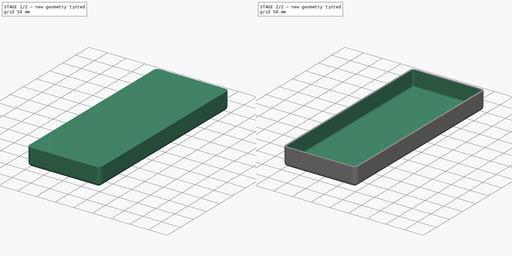
[diagram: build sequence overview — one tinted view per stage of 2, left to right]
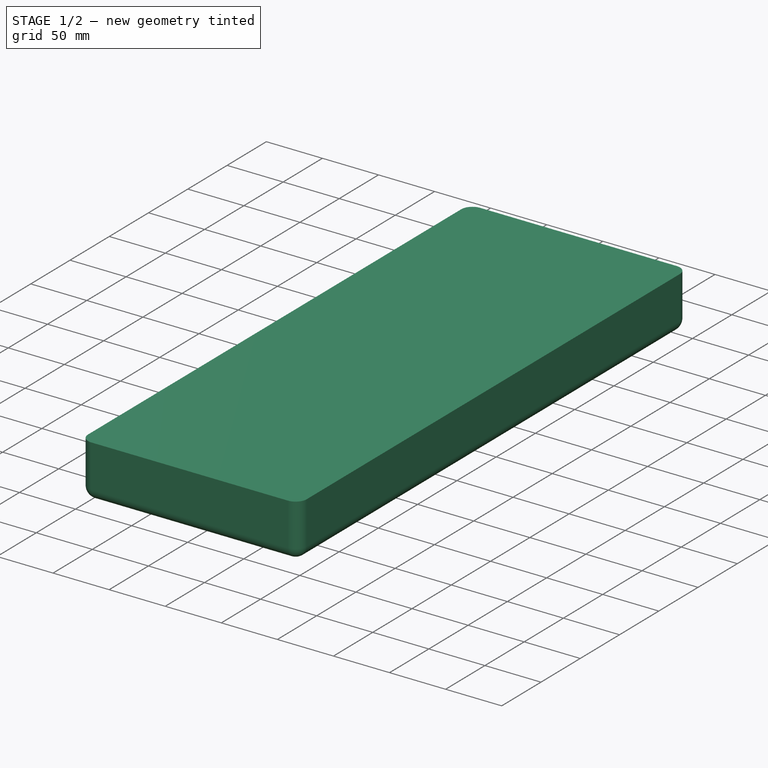
[diagram: stage 1 of 2 — iso view after this stage's code; geometry added in this stage tinted green]
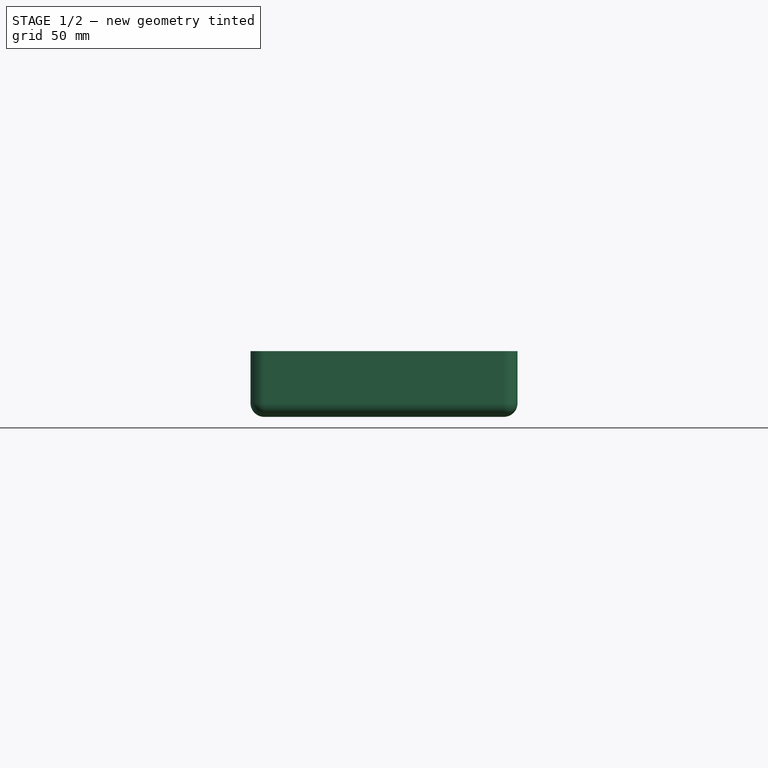
[diagram: stage 1 of 2 — front view after this stage's code; geometry added in this stage tinted green]
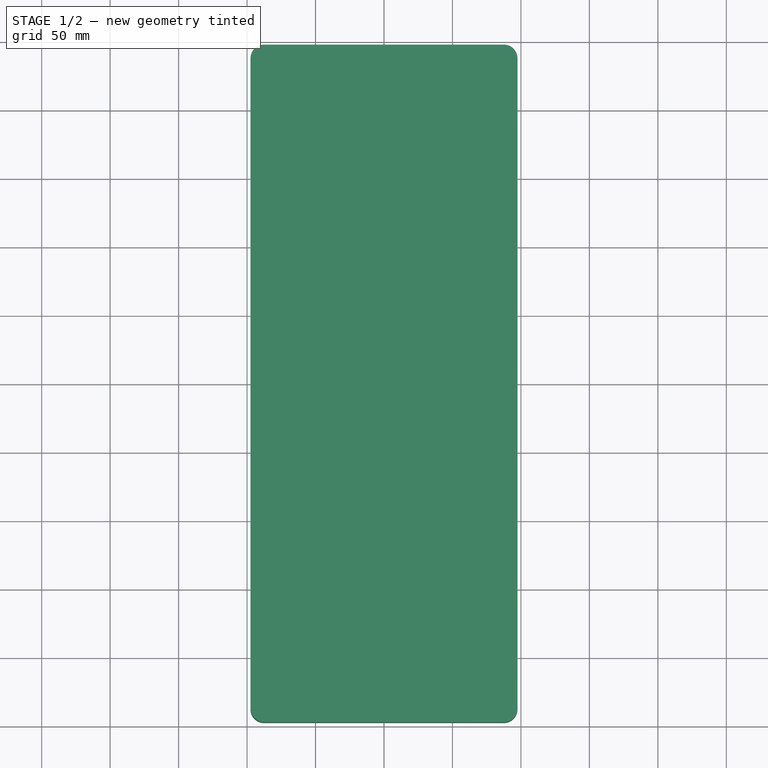
[diagram: stage 1 of 2 — top view after this stage's code; geometry added in this stage tinted green]
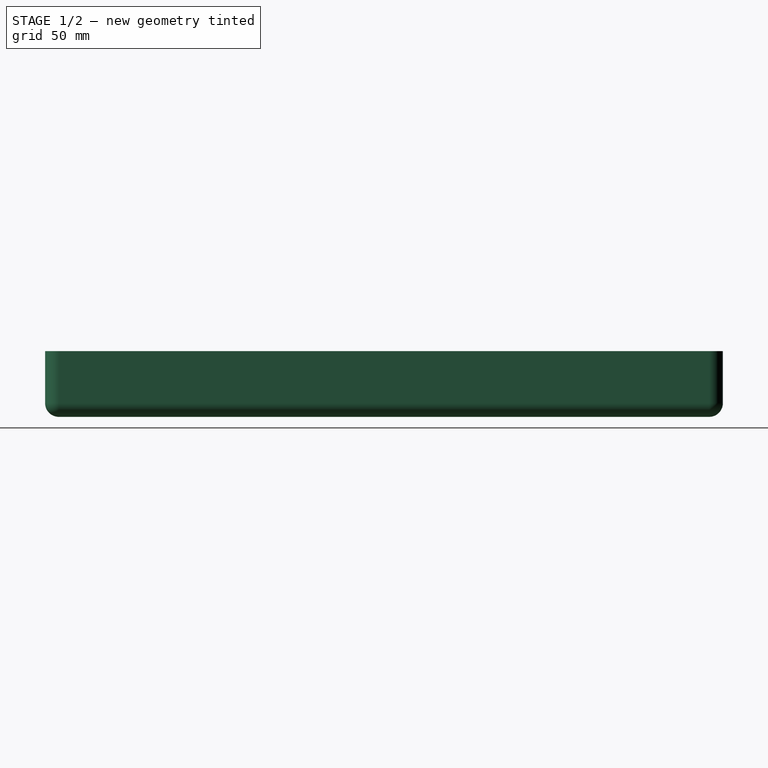
[diagram: stage 1 of 2 — right view after this stage's code; geometry added in this stage tinted green]
FCSTD DOCUMENT  (FreeCAD 1.1R20260223 (Git shallow))
Label: wallspeakers prototype v6
License: All rights reserved
LicenseURL: http://en.wikipedia.org/wiki/All_rights_reserved
objects: Sketcher::SketchObject×4, App::Point×1, PartDesign::Pad×1, PartDesign::Fillet×1, PartDesign::Thickness×1, PartDesign::Body×1, App::VarSet×1
note: 18 computed .brp shape members not serialized (recipe doc carries the construction recipe); baked Part::Feature solids carry a one-line shape summary decoded from their .brp

FEATURE [App::Point] Origin001
  Role = Origin
FEATURE [Sketcher::SketchObject] Sketch001
  ArcFitTolerance = 1e-06
  AttachmentSupport = -> [Origin]
  ExternalTypes = [0]
  FullyConstrained = true
  MakeInternals = false
  MapMode = 5
  expr: Constraints[32] = <<v>>.ext_roundover_radius
  expr: Constraints[3] = Sketch002.Constraints[3]
  expr: Constraints[4] = Sketch002.Constraints[4]
  expr: Constraints[5] = Sketch002.Constraints[5]
  expr: Constraints[6] = Sketch002.Constraints[6]
  expr: Constraints[7] = Sketch002.Constraints[7]
  sketch-geometry (17):
    g0: GeomPoint X=-97.5 Y=247.5 Z=0
    g1: GeomPoint X=97.5 Y=247.5 Z=0
    g2: GeomPoint X=97.5 Y=-247.5 Z=0
    g3: GeomPoint X=-97.5 Y=-247.5 Z=0
    g4: GeomPoint [constr] X=-70 Y=0 Z=0
    g5: GeomPoint X=0 Y=120 Z=0
    g6: GeomPoint X=0 Y=-120 Z=0
    g7: LineSegment StartX=-97.5 StartY=237.5 StartZ=0 EndX=-97.5 EndY=-237.5 EndZ=0
    g8: LineSegment StartX=-87.5 StartY=-247.5 StartZ=0 EndX=87.5 EndY=-247.5 EndZ=0
    g9: LineSegment StartX=97.5 StartY=-237.5 StartZ=0 EndX=97.5 EndY=237.5 EndZ=0
    g10: LineSegment StartX=87.5 StartY=247.5 StartZ=0 EndX=-87.5 EndY=247.5 EndZ=0
    g11: ArcOfCircle CenterX=-87.5 CenterY=237.5 CenterZ=0 NormalX=0 NormalY=0 NormalZ=1 AngleXU=0 Radius=10 StartAngle=1.5708 EndAngle=3.14159
    g12: ArcOfCircle CenterX=-87.5 CenterY=-237.5 CenterZ=0 NormalX=0 NormalY=0 NormalZ=1 AngleXU=0 Radius=10 StartAngle=3.14159 EndAngle=4.71239
    g13: ArcOfCircle CenterX=87.5 CenterY=-237.5 CenterZ=0 NormalX=0 NormalY=0 NormalZ=1 AngleXU=0 Radius=10 StartAngle=4.71239 EndAngle=6.28319
    g14: ArcOfCircle CenterX=87.5 CenterY=237.5 CenterZ=0 NormalX=0 NormalY=0 NormalZ=1 AngleXU=0 Radius=10 StartAngle=1e-15 EndAngle=1.5708
    g15: GeomPoint [constr] X=-97.5 Y=247.5 Z=0
    g16: GeomPoint [constr] X=97.5 Y=-247.5 Z=0
  constraints (33):
    c: PointOnObject(g4,g-1)
    c: PointOnObject(g5,g-2)
    c: PointOnObject(g6,g-2)
    c: DistanceX(g4,g-1) = 70
    c: DistanceY(g-1,g5) = 120
    c: DistanceY(g6,g-1) = 120
    c: DistanceY(g-1,g1) = 247.5
    c: DistanceX(g-1,g1) = 97.5
    c: Symmetric(g0,g1,g-2)
    c: Symmetric(g1,g2,g-1)
    c: Symmetric(g3,g2,g-2)
    c: Tangent(g7,g11) = -1.5708
    c: Tangent(g7,g12) = -1.5708
    c: Tangent(g8,g12) = -1.5708
    c: Tangent(g8,g13) = -1.5708
    c: Tangent(g9,g13) = -1.5708
    c: Tangent(g9,g14) = -1.5708
    c: Tangent(g10,g14) = -1.5708
    c: Tangent(g10,g11) = -1.5708
    c: Vertical(g7)
    c: Vertical(g9)
    c: Horizontal(g8)
    c: Horizontal(g10)
    c: Equal(g11,g12)
    c: Equal(g12,g13)
    c: Equal(g13,g14)
    c: PointOnObject(g15,g7)
    c: PointOnObject(g15,g10)
    c: PointOnObject(g16,g8)
    c: PointOnObject(g16,g9)
    c: Coincident(g15,g0)
    c: Coincident(g16,g2)
    c: Radius(g13) = 10
FEATURE [PartDesign::Pad] Pad  label="main block"
  Direction = (0,0,1)
  Length = 48
  Length2 = 10
  Profile = -> Sketch001
  ReferenceAxis = -> Sketch001 [N_Axis]
  SideType = 0
  Suppressed = false
  Type = 0
  Type2 = 0
  expr: Length = VarSet.ext_thickness
FEATURE [PartDesign::Fillet] Fillet  label="front roundovers"
  Base = -> Pad [Face9]
  BaseFeature = -> Pad
  Radius = 10
  SupportTransform = false
  Suppressed = false
  UseAllEdges = false
  expr: Radius = <<v>>.ext_roundover_radius
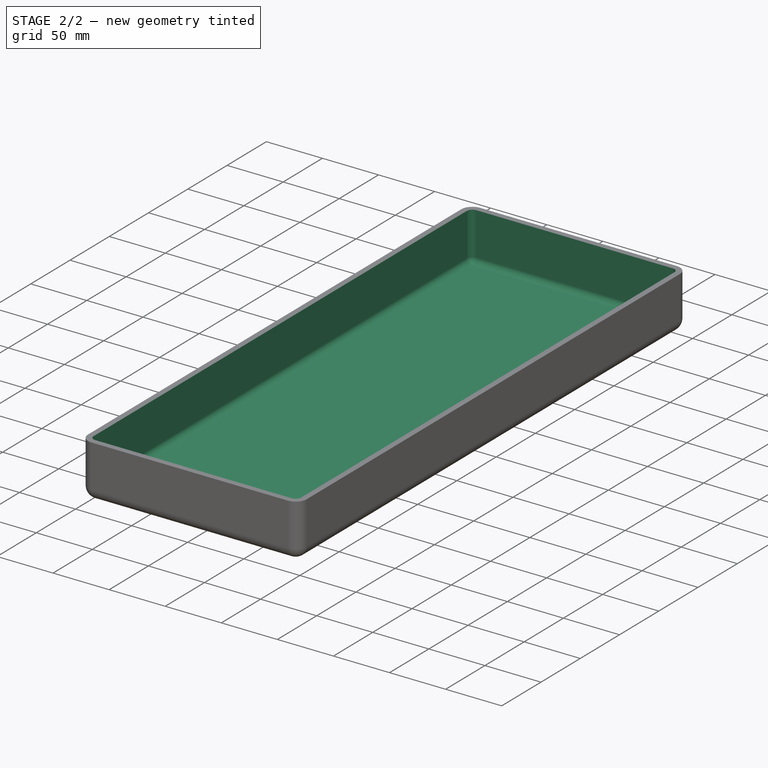
[diagram: stage 2 of 2 — iso view after this stage's code; geometry added in this stage tinted green]
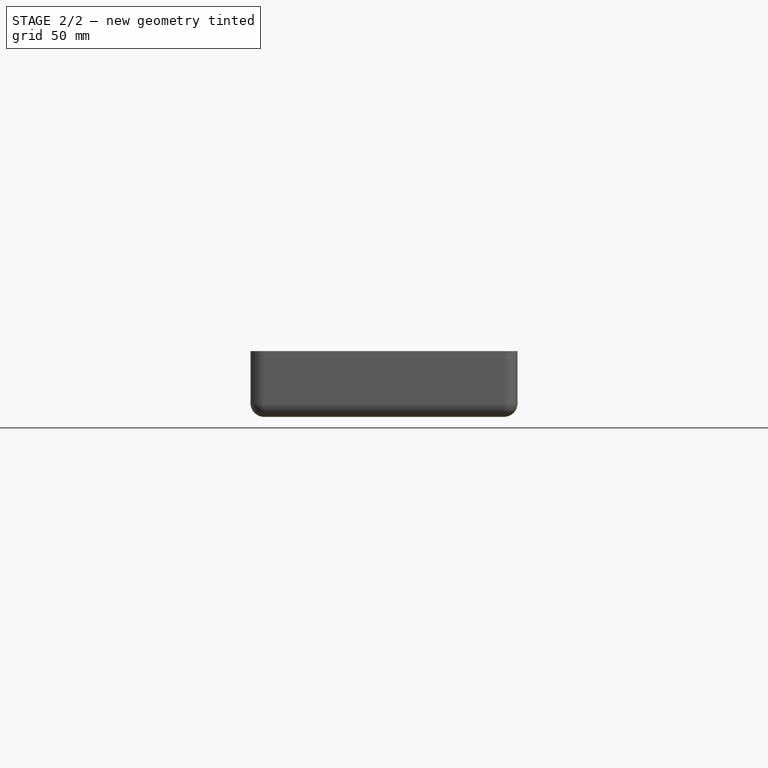
[diagram: stage 2 of 2 — front view after this stage's code; geometry added in this stage tinted green]
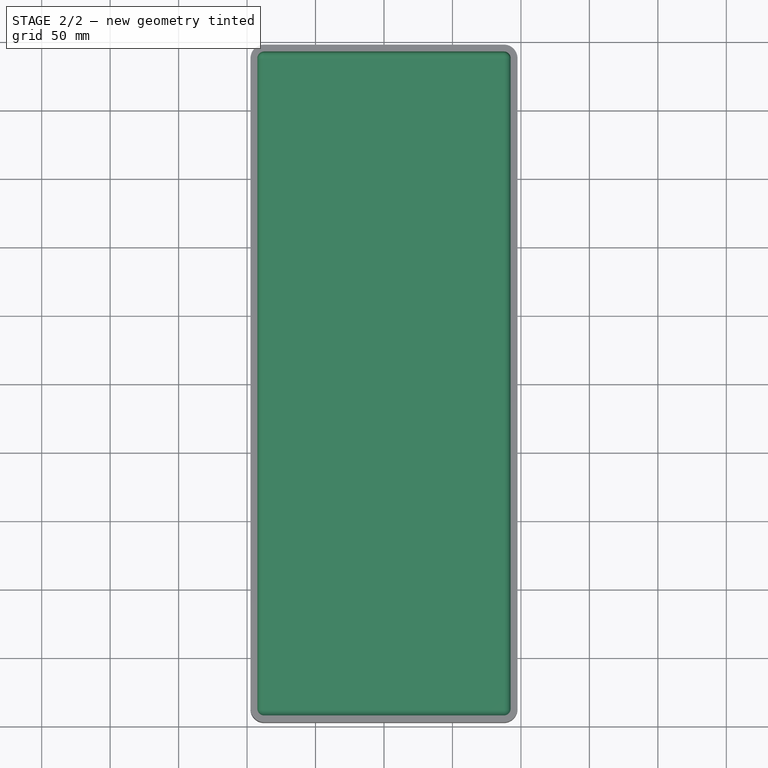
[diagram: stage 2 of 2 — top view after this stage's code; geometry added in this stage tinted green]
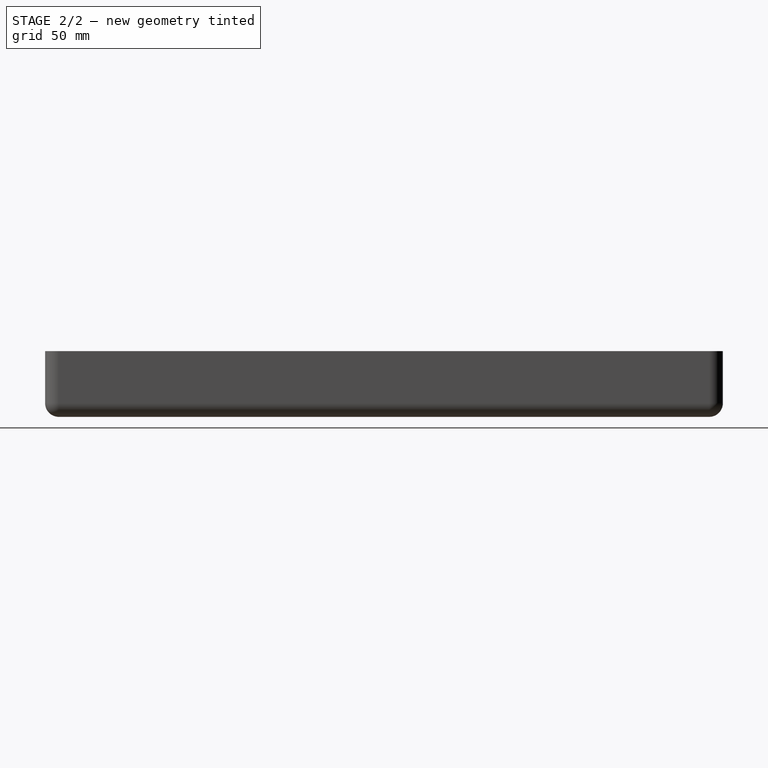
[diagram: stage 2 of 2 — right view after this stage's code; geometry added in this stage tinted green]
FEATURE [Sketcher::SketchObject] Sketch002  label="base geometry"
  ArcFitTolerance = 1e-06
  ExternalTypes = [0]
  FullyConstrained = true
  MakeInternals = false
  expr: Constraints[3] = <<v>>.bmr_offset
  expr: Constraints[4] = <<v>>.woofer_offset
  expr: Constraints[5] = <<v>>.woofer_offset
  expr: Constraints[6] = <<v>>.ext_height / 2
  expr: Constraints[7] = <<v>>.ext_width / 2
  sketch-geometry (7):
    g0: GeomPoint [constr] X=-97.5 Y=247.5 Z=0
    g1: GeomPoint [constr] X=97.5 Y=247.5 Z=0
    g2: GeomPoint [constr] X=97.5 Y=-247.5 Z=0
    g3: GeomPoint [constr] X=-97.5 Y=-247.5 Z=0
    g4: GeomPoint [constr] X=-70 Y=0 Z=0
    g5: GeomPoint [constr] X=0 Y=120 Z=0
    g6: GeomPoint [constr] X=0 Y=-120 Z=0
  constraints (11):
    c: PointOnObject(g4,g-1)
    c: PointOnObject(g5,g-2)
    c: PointOnObject(g6,g-2)
    c: DistanceX(g4,g-1) = 70
    c: DistanceY(g-1,g5) = 120
    c: DistanceY(g6,g-1) = 120
    c: DistanceY(g-1,g1) = 247.5
    c: DistanceX(g-1,g1) = 97.5
    c: Symmetric(g0,g1,g-2)
    c: Symmetric(g1,g2,g-1)
    c: Symmetric(g3,g2,g-2)
FEATURE [Sketcher::SketchObject] Sketch  label="screw hole geometry"
  ArcFitTolerance = 1e-06
  AttachmentSupport = -> [Sketch002]
  ExternalTypes = [0]
  FullyConstrained = true
  MakeInternals = false
  MapMode = 2
  expr: Constraints[11] = VarSet.bmr_enc_top_offset
  expr: Constraints[1] = <<v>>.ext_height / 2 - <<v>>.screw_offset
  expr: Constraints[2] = <<v>>.ext_width / 2 - <<v>>.screw_offset
  expr: Constraints[8] = <<v>>.ext_width / 2 - <<v>>.screw_offset
  expr: Constraints[9] = <<v>>.bmr_enc_base
  sketch-geometry (9):
    g0: GeomPoint [constr] X=-87.5 Y=237.5 Z=0
    g1: GeomPoint [constr] X=87.5 Y=237.5 Z=0
    g2: GeomPoint [constr] X=87.5 Y=-237.5 Z=0
    g3: GeomPoint [constr] X=-87.5 Y=-237.5 Z=0
    g4: GeomPoint [constr] X=-87.5 Y=-90 Z=0
    g5: GeomPoint [constr] X=-87.5 Y=90 Z=0
    g6: GeomPoint [constr] X=87.5 Y=90 Z=0
    g7: GeomPoint [constr] X=87.5 Y=-90 Z=0
    g8: GeomPoint [constr] X=-30 Y=0 Z=0
  constraints (12):
    c: PointOnObject(g8,g-1)
    c: DistanceY(g-1,g0) = 237.5
    c: DistanceX(g0,g-1) = 87.5
    c: Symmetric(g0,g1,g-2)
    c: Symmetric(g5,g6,g-2)
    c: Symmetric(g4,g7,g-2)
    c: Symmetric(g3,g2,g-2)
    c: Symmetric(g2,g1,g-1)
    c: DistanceX(g5,g-1) = 87.5
    c: DistanceY(g4,g5) = 180
    c: Symmetric(g5,g4,g-1)
    c: Distance(g8,g-1) = 30
FEATURE [Sketcher::SketchObject] Sketch003
  ArcFitTolerance = 1e-06
  AttachmentOffset = pos=(0,0,5) rot=(0,0,1;0rad)
  AttachmentSupport = -> [Sketch]
  ExternalTypes = [0]
  FullyConstrained = true
  MakeInternals = false
  MapMode = 2
  Placement = pos=(0,0,5) rot=(0,0,1;0rad)
  expr: .AttachmentOffset.Base.z = <<v>>.wall_thickness
  expr: Constraints[11] = Sketch.Constraints[11]
  expr: Constraints[1] = Sketch.Constraints[1]
  expr: Constraints[27] = <<v>>.screw_post_diameter
  expr: Constraints[2] = Sketch.Constraints[2]
  expr: Constraints[8] = Sketch.Constraints[8]
  expr: Constraints[9] = Sketch.Constraints[9]
  sketch-geometry (18):
    g0: GeomPoint [constr] X=-87.5 Y=237.5 Z=0
    g1: GeomPoint [constr] X=87.5 Y=237.5 Z=0
    g2: GeomPoint [constr] X=87.5 Y=-237.5 Z=0
    g3: GeomPoint [constr] X=-87.5 Y=-237.5 Z=0
    g4: GeomPoint [constr] X=-87.5 Y=-90 Z=0
    g5: GeomPoint [constr] X=-87.5 Y=90 Z=0
    g6: GeomPoint [constr] X=87.5 Y=90 Z=0
    g7: GeomPoint [constr] X=87.5 Y=-90 Z=0
    g8: GeomPoint [constr] X=-30 Y=0 Z=0
    g9: Circle CenterX=-87.5 CenterY=237.5 CenterZ=0 NormalX=0 NormalY=0 NormalZ=1 AngleXU=0 Radius=10
    g10: Circle CenterX=87.5 CenterY=237.5 CenterZ=0 NormalX=0 NormalY=0 NormalZ=1 AngleXU=0 Radius=10
    g11: Circle CenterX=87.5 CenterY=90 CenterZ=0 NormalX=0 NormalY=0 NormalZ=1 AngleXU=0 Radius=10
    g12: Circle CenterX=-87.5 CenterY=90 CenterZ=0 NormalX=0 NormalY=0 NormalZ=1 AngleXU=0 Radius=10
    g13: Circle CenterX=-87.5 CenterY=-90 CenterZ=0 NormalX=0 NormalY=0 NormalZ=1 AngleXU=0 Radius=10
    g14: Circle CenterX=87.5 CenterY=-90 CenterZ=0 NormalX=0 NormalY=0 NormalZ=1 AngleXU=0 Radius=10
    g15: Circle CenterX=87.5 CenterY=-237.5 CenterZ=0 NormalX=0 NormalY=0 NormalZ=1 AngleXU=0 Radius=10
    g16: Circle CenterX=-87.5 CenterY=-237.5 CenterZ=0 NormalX=0 NormalY=0 NormalZ=1 AngleXU=0 Radius=10
    g17: Circle CenterX=-30 CenterY=0 CenterZ=0 NormalX=0 NormalY=0 NormalZ=1 AngleXU=0 Radius=10
  constraints (24):
    c: PointOnObject(g8,g-1)
    c: DistanceY(g-1,g0) = 237.5
    c: DistanceX(g0,g-1) = 87.5
    c: Symmetric(g0,g1,g-2)
    c: Symmetric(g5,g6,g-2)
    c: Symmetric(g4,g7,g-2)
    c: Symmetric(g3,g2,g-2)
    c: Symmetric(g2,g1,g-1)
    c: DistanceX(g5,g-1) = 87.5
    c: DistanceY(g4,g5) = 180
    c: Symmetric(g5,g4,g-1)
    c: Distance(g8,g-1) = 30
    c: Coincident(g9,g0)
    c: Coincident(g10,g1)
    c: Coincident(g11,g6)
    c: Coincident(g12,g5)
    c: Coincident(g13,g4)
    c: Coincident(g14,g7)
    c: Coincident(g15,g2)
    c: Coincident(g16,g3)
    c: Equal(g9, g10-g16) x7
    c: Radius(g9) = 10
    c: Coincident(g17,g8)
    c: Equal(g9,g17)
FEATURE [PartDesign::Thickness] Thickness  label="hollow main block"
  Base = -> Fillet [Face4]
  BaseFeature = -> Fillet
  Intersection = false
  Join = 0
  Mode = 0
  Reversed = true
  SupportTransform = false
  Suppressed = false
  Value = 5
  expr: Value = <<v>>.wall_thickness
FEATURE [PartDesign::Body] Body  label="shell"
  AllowCompound = false
  Group = -> [Sketch002,Sketch,Sketch001,Pad,Fillet,Thickness,Sketch003]
  Origin = -> Origin
  Tip = -> Thickness
FEATURE [App::VarSet] VarSet  label="v"
  bmr_enc_base = 180
  bmr_enc_top_offset = 30
  bmr_offset = 70
  ext_height = 495
  ext_roundover_radius = 10
  ext_thickness = 48
  ext_width = 195
  screw_offset = 10
  screw_post_diameter = 10
  wall_thickness = 5
  woofer_offset = 120
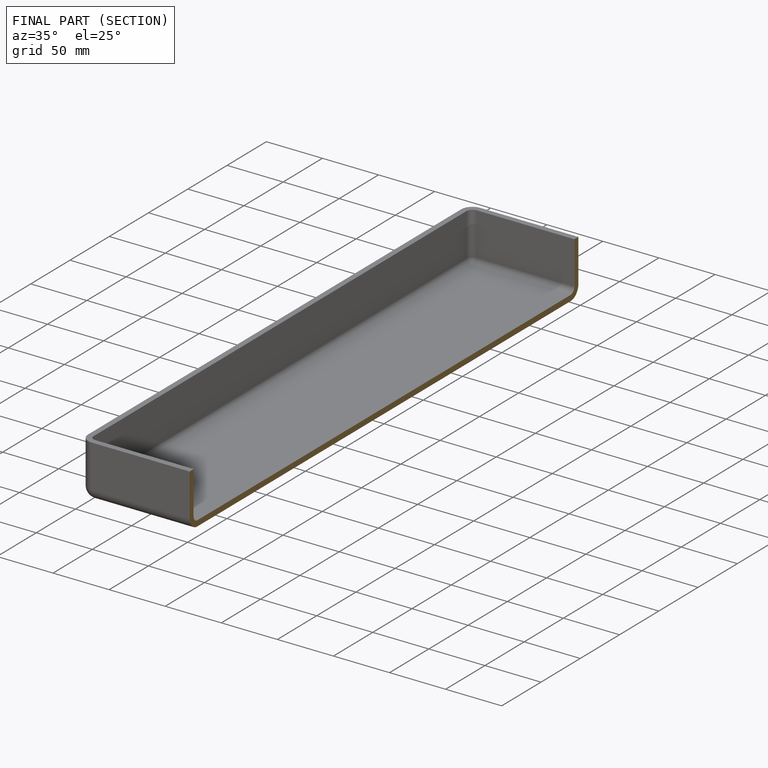
[diagram: finished part — half-section view (interior)]
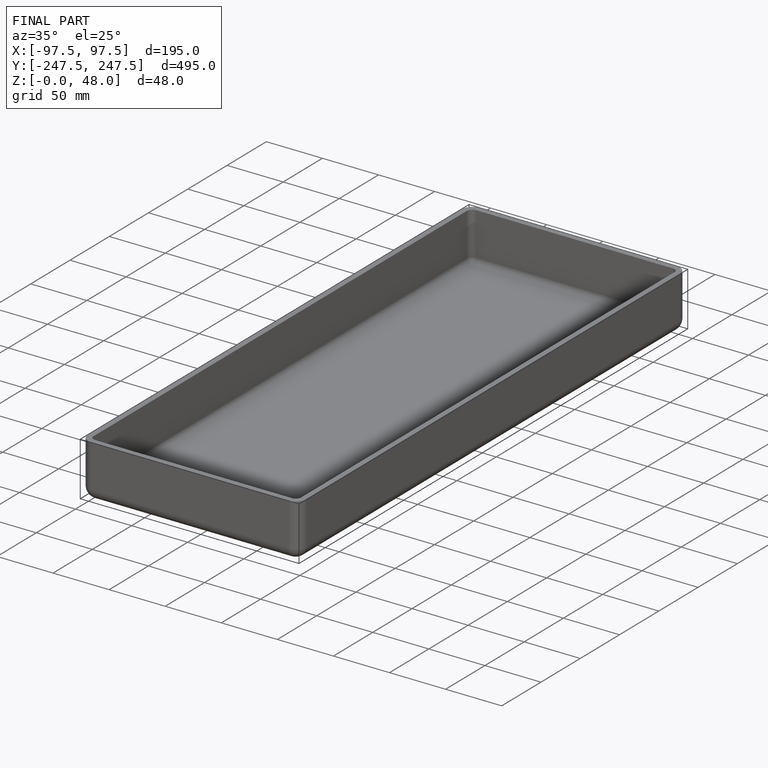
[diagram: finished part — iso view with bounding-box wireframe]
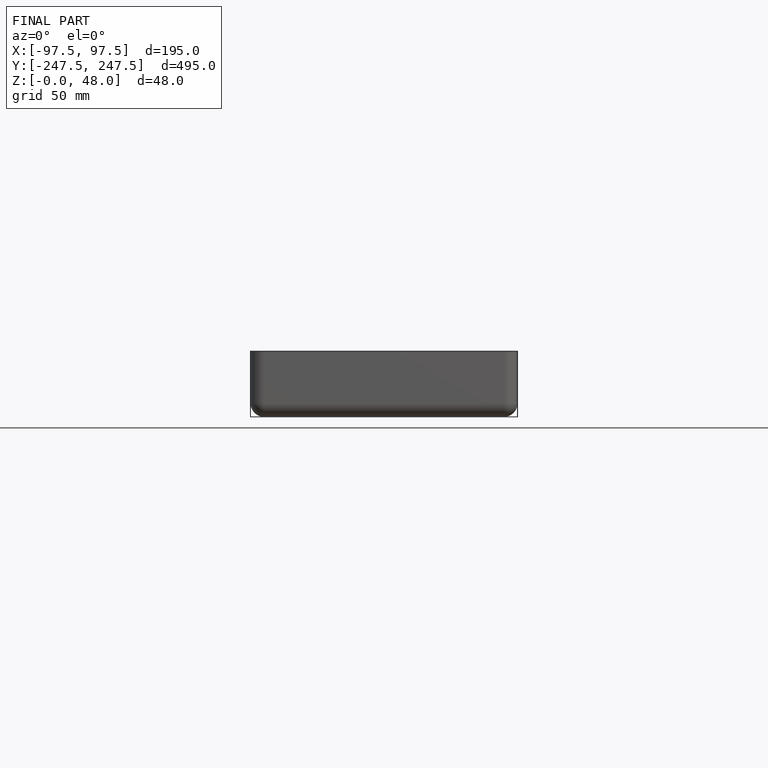
[diagram: finished part — front view with bounding-box wireframe]
